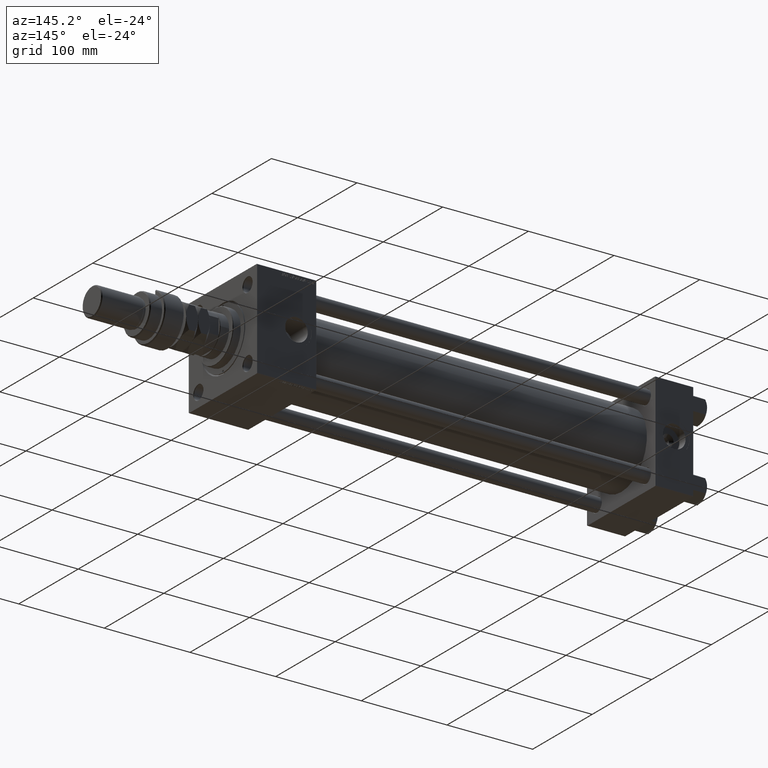
[diagram: clean part render]
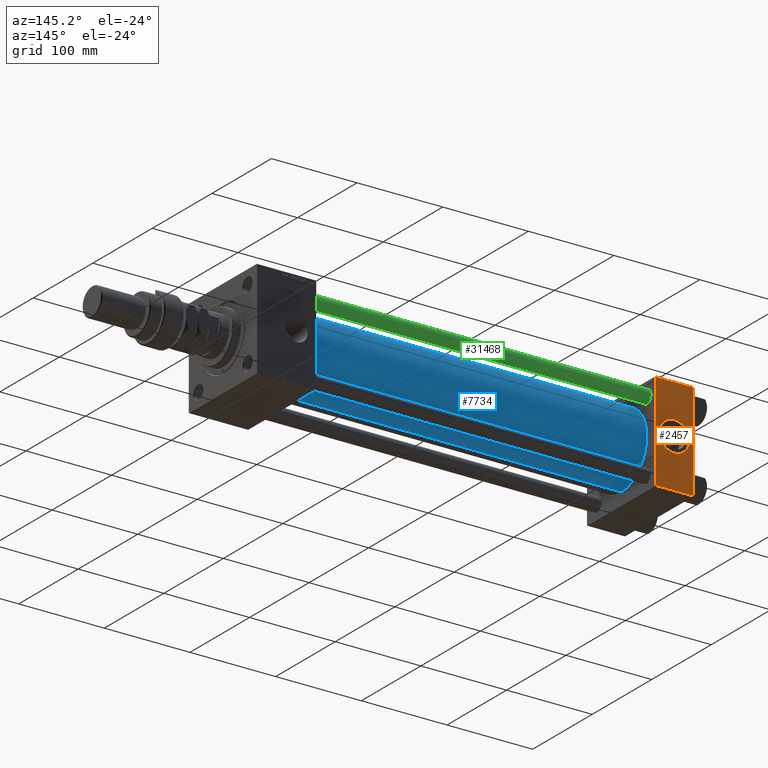
[diagram: same view with three faces highlighted in distinct colors, each labeled with its STEP entity id]
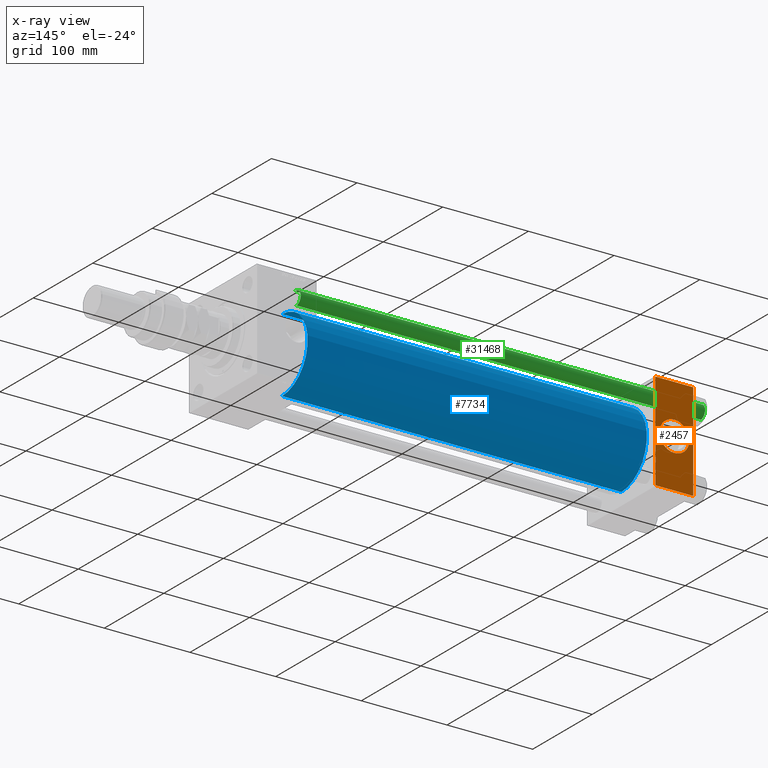
[diagram: x-ray of the same camera — body ghosted, the three highlighted faces saturated]
A machine part, auxiliary view with three faces highlighted in distinct colors.
The next image is the same camera in x-ray (body ghosted, the three faces saturated) — at least one of them is partly hidden behind the body in this view.
Their STEP definitions:

[orange] entity #2457 — the highlighted planar face has unit normal (0, 1, 0).
#1142 = CARTESIAN_POINT ( 'NONE',  ( 44.00000000000000000, 57.49999999999999289, 57.50000000000000711 ) ) ;
#2457 = ADVANCED_FACE ( 'NONE', ( #37712, #45610 ), #32308, .T. ) ;
#3209 = DIRECTION ( 'NONE',  ( 0.000000000000000000, 0.000000000000000000, 1.000000000000000000 ) ) ;
#4157 = VERTEX_POINT ( 'NONE', #17039 ) ;
#4813 = ORIENTED_EDGE ( 'NONE', *, *, #36567, .T. ) ;
#4930 = LINE ( 'NONE', #1142, #8312 ) ;
#6406 = DIRECTION ( 'NONE',  ( -1.000000000000000000, 0.000000000000000000, 0.000000000000000000 ) ) ;
#6723 = VERTEX_POINT ( 'NONE', #51117 ) ;
#8312 = VECTOR ( 'NONE', #25576, 1000.000000000000000 ) ;
#9636 = VERTEX_POINT ( 'NONE', #14611 ) ;
#10733 = EDGE_CURVE ( 'NONE', #40544, #6723, #37390, .T. ) ;
#11083 = AXIS2_PLACEMENT_3D ( 'NONE', #29291, #12196, #41524 ) ;
#11160 = DIRECTION ( 'NONE',  ( 1.000000000000000000, 0.000000000000000000, 0.000000000000000000 ) ) ;
#12196 = DIRECTION ( 'NONE',  ( -0.000000000000000000, 1.000000000000000000, 0.000000000000000000 ) ) ;
#14122 = EDGE_CURVE ( 'NONE', #31340, #9636, #19325, .T. ) ;
#14552 = VECTOR ( 'NONE', #27989, 1000.000000000000000 ) ;
#14611 = CARTESIAN_POINT ( 'NONE',  ( 44.00000000000000000, 57.49999999999999289, 57.00000000000003553 ) ) ;
#15746 = AXIS2_PLACEMENT_3D ( 'NONE', #40406, #40665, #3209 ) ;
#17039 = CARTESIAN_POINT ( 'NONE',  ( 44.00000000000000000, 57.49999999999999289, -57.00000000000000711 ) ) ;
#18921 = CARTESIAN_POINT ( 'NONE',  ( 22.00000000000000000, 57.49999999999999289, 17.50000000000000000 ) ) ;
#19325 = LINE ( 'NONE', #35072, #23575 ) ;
#19352 = DIRECTION ( 'NONE',  ( 0.000000000000000000, 0.000000000000000000, 1.000000000000000000 ) ) ;
#19375 = EDGE_LOOP ( 'NONE', ( #4813, #37827, #50018, #28567 ) ) ;
#20890 = AXIS2_PLACEMENT_3D ( 'NONE', #39453, #43798, #19352 ) ;
#22734 = EDGE_LOOP ( 'NONE', ( #39564, #29619 ) ) ;
#23575 = VECTOR ( 'NONE', #11160, 1000.000000000000000 ) ;
#24453 = LINE ( 'NONE', #52733, #14552 ) ;
#25576 = DIRECTION ( 'NONE',  ( 0.000000000000000000, 0.000000000000000000, -1.000000000000000000 ) ) ;
#27584 = LINE ( 'NONE', #36540, #43684 ) ;
#27989 = DIRECTION ( 'NONE',  ( 0.000000000000000000, 0.000000000000000000, -1.000000000000000000 ) ) ;
#28567 = ORIENTED_EDGE ( 'NONE', *, *, #14122, .T. ) ;
#29291 = CARTESIAN_POINT ( 'NONE',  ( 44.00000000000000000, 57.49999999999999289, 57.50000000000000711 ) ) ;
#29619 = ORIENTED_EDGE ( 'NONE', *, *, #41890, .F. ) ;
#31340 = VERTEX_POINT ( 'NONE', #39009 ) ;
#31489 = EDGE_CURVE ( 'NONE', #4157, #46077, #27584, .T. ) ;
#32308 = PLANE ( 'NONE',  #11083 ) ;
#35072 = CARTESIAN_POINT ( 'NONE',  ( 44.00000000000000000, 57.49999999999999289, 57.00000000000003553 ) ) ;
#36540 = CARTESIAN_POINT ( 'NONE',  ( 44.00000000000000000, 57.49999999999999289, -57.00000000000000711 ) ) ;
#36567 = EDGE_CURVE ( 'NONE', #9636, #4157, #4930, .T. ) ;
#37390 = CIRCLE ( 'NONE', #15746, 17.50000000000000000 ) ;
#37712 = FACE_BOUND ( 'NONE', #22734, .T. ) ;
#37827 = ORIENTED_EDGE ( 'NONE', *, *, #31489, .T. ) ;
#39009 = CARTESIAN_POINT ( 'NONE',  ( 0.000000000000000000, 57.49999999999999289, 57.00000000000003553 ) ) ;
#39453 = CARTESIAN_POINT ( 'NONE',  ( 22.00000000000000000, 57.49999999999999289, 0.000000000000000000 ) ) ;
#39564 = ORIENTED_EDGE ( 'NONE', *, *, #10733, .F. ) ;
#40383 = EDGE_CURVE ( 'NONE', #31340, #46077, #24453, .T. ) ;
#40406 = CARTESIAN_POINT ( 'NONE',  ( 22.00000000000000000, 57.49999999999999289, 0.000000000000000000 ) ) ;
#40544 = VERTEX_POINT ( 'NONE', #18921 ) ;
#40665 = DIRECTION ( 'NONE',  ( 0.000000000000000000, 1.000000000000000000, 0.000000000000000000 ) ) ;
#41524 = DIRECTION ( 'NONE',  ( 0.000000000000000000, -0.000000000000000000, 1.000000000000000000 ) ) ;
#41890 = EDGE_CURVE ( 'NONE', #6723, #40544, #44328, .T. ) ;
#41985 = CARTESIAN_POINT ( 'NONE',  ( 0.000000000000000000, 57.49999999999999289, -57.00000000000000711 ) ) ;
#43684 = VECTOR ( 'NONE', #6406, 1000.000000000000000 ) ;
#43798 = DIRECTION ( 'NONE',  ( 0.000000000000000000, 1.000000000000000000, 0.000000000000000000 ) ) ;
#44328 = CIRCLE ( 'NONE', #20890, 17.50000000000000000 ) ;
#45610 = FACE_OUTER_BOUND ( 'NONE', #19375, .T. ) ;
#46077 = VERTEX_POINT ( 'NONE', #41985 ) ;
#50018 = ORIENTED_EDGE ( 'NONE', *, *, #40383, .F. ) ;
#51117 = CARTESIAN_POINT ( 'NONE',  ( 22.00000000000000355, 57.49999999999999289, -17.50000000000000000 ) ) ;
#52733 = CARTESIAN_POINT ( 'NONE',  ( 0.000000000000000000, 57.49999999999999289, 57.50000000000000711 ) ) ;

[blue] entity #7734 — the highlighted cylindrical surface (partial cylindrical patch) has radius 43 mm, axis along (-1, -0, -0).
#1725 = CARTESIAN_POINT ( 'NONE',  ( 440.0000000000000000, -2.602085213965210642E-15, 43.00000000000000000 ) ) ;
#3567 = FACE_OUTER_BOUND ( 'NONE', #39893, .T. ) ;
#4080 = CARTESIAN_POINT ( 'NONE',  ( 43.99999999999998579, 2.663896022368408223E-15, -43.00000000000000000 ) ) ;
#5500 = ORIENTED_EDGE ( 'NONE', *, *, #10162, .T. ) ;
#7734 = ADVANCED_FACE ( 'NONE', ( #3567 ), #16070, .T. ) ;
#9547 = AXIS2_PLACEMENT_3D ( 'NONE', #32619, #52490, #16332 ) ;
#10162 = EDGE_CURVE ( 'NONE', #49940, #52619, #16162, .T. ) ;
#11882 = EDGE_CURVE ( 'NONE', #48338, #37040, #52249, .T. ) ;
#14489 = DIRECTION ( 'NONE',  ( -1.000000000000000000, -0.000000000000000000, -0.000000000000000000 ) ) ;
#16070 = CYLINDRICAL_SURFACE ( 'NONE', #9547, 43.00000000000000000 ) ;
#16162 = LINE ( 'NONE', #49565, #19184 ) ;
#16288 = EDGE_CURVE ( 'NONE', #49940, #48338, #50869, .T. ) ;
#16332 = DIRECTION ( 'NONE',  ( 0.000000000000000000, 0.000000000000000000, 1.000000000000000000 ) ) ;
#16704 = CARTESIAN_POINT ( 'NONE',  ( 440.0000000000000000, -2.602085213965210642E-15, 0.000000000000000000 ) ) ;
#19184 = VECTOR ( 'NONE', #49294, 1000.000000000000000 ) ;
#20870 = CARTESIAN_POINT ( 'NONE',  ( 440.0000000000000000, 2.663896022368408223E-15, -43.00000000000000000 ) ) ;
#21720 = ORIENTED_EDGE ( 'NONE', *, *, #16288, .F. ) ;
#21798 = ORIENTED_EDGE ( 'NONE', *, *, #11882, .F. ) ;
#25372 = CARTESIAN_POINT ( 'NONE',  ( 43.99999999999998579, -2.602085213965210642E-15, 0.000000000000000000 ) ) ;
#32619 = CARTESIAN_POINT ( 'NONE',  ( 440.0000000000000000, -2.602085213965210642E-15, 0.000000000000000000 ) ) ;
#33018 = VECTOR ( 'NONE', #14489, 1000.000000000000000 ) ;
#34306 = CARTESIAN_POINT ( 'NONE',  ( 43.99999999999998579, -2.602085213965210642E-15, 43.00000000000000000 ) ) ;
#35931 = AXIS2_PLACEMENT_3D ( 'NONE', #25372, #49060, #49314 ) ;
#37040 = VERTEX_POINT ( 'NONE', #34306 ) ;
#39294 = CARTESIAN_POINT ( 'NONE',  ( 440.0000000000000000, -2.602085213965210642E-15, 43.00000000000000000 ) ) ;
#39893 = EDGE_LOOP ( 'NONE', ( #21720, #5500, #43487, #21798 ) ) ;
#43487 = ORIENTED_EDGE ( 'NONE', *, *, #53505, .T. ) ;
#46018 = DIRECTION ( 'NONE',  ( 0.000000000000000000, 0.000000000000000000, -1.000000000000000000 ) ) ;
#46362 = CIRCLE ( 'NONE', #35931, 43.00000000000000000 ) ;
#48338 = VERTEX_POINT ( 'NONE', #39294 ) ;
#48592 = AXIS2_PLACEMENT_3D ( 'NONE', #16704, #49847, #46018 ) ;
#49060 = DIRECTION ( 'NONE',  ( 1.000000000000000000, -0.000000000000000000, 0.000000000000000000 ) ) ;
#49294 = DIRECTION ( 'NONE',  ( -1.000000000000000000, -0.000000000000000000, -0.000000000000000000 ) ) ;
#49314 = DIRECTION ( 'NONE',  ( 0.000000000000000000, 0.000000000000000000, 1.000000000000000000 ) ) ;
#49565 = CARTESIAN_POINT ( 'NONE',  ( 440.0000000000000000, 2.663896022368408223E-15, -43.00000000000000000 ) ) ;
#49847 = DIRECTION ( 'NONE',  ( 1.000000000000000000, 0.000000000000000000, 0.000000000000000000 ) ) ;
#49940 = VERTEX_POINT ( 'NONE', #20870 ) ;
#50869 = CIRCLE ( 'NONE', #48592, 43.00000000000000000 ) ;
#52249 = LINE ( 'NONE', #1725, #33018 ) ;
#52490 = DIRECTION ( 'NONE',  ( -1.000000000000000000, -0.000000000000000000, -0.000000000000000000 ) ) ;
#52619 = VERTEX_POINT ( 'NONE', #4080 ) ;
#53505 = EDGE_CURVE ( 'NONE', #52619, #37040, #46362, .T. ) ;

[green] entity #31468 — the highlighted cylindrical surface (edge-blend (fillet) strip) has radius 8 mm, axis along (-1, 0, 0).
#29 = AXIS2_PLACEMENT_3D ( 'NONE', #662, #47914, #31051 ) ;
#662 = CARTESIAN_POINT ( 'NONE',  ( 0.000000000000000000, 0.000000000000000000, 472.5000000000002274 ) ) ;
#1739 = LINE ( 'NONE', #13147, #42549 ) ;
#2347 = DIRECTION ( 'NONE',  ( -0.000000000000000000, -0.000000000000000000, -1.000000000000000000 ) ) ;
#3262 = CARTESIAN_POINT ( 'NONE',  ( -8.000000000000000000, 0.000000000000000000, 473.0000000000000000 ) ) ;
#4052 = LINE ( 'NONE', #3262, #39068 ) ;
#4364 = CIRCLE ( 'NONE', #29, 8.000000000000000000 ) ;
#5185 = ORIENTED_EDGE ( 'NONE', *, *, #21228, .T. ) ;
#6575 = VERTEX_POINT ( 'NONE', #40827 ) ;
#9375 = EDGE_CURVE ( 'NONE', #30489, #6575, #4052, .T. ) ;
#12491 = CARTESIAN_POINT ( 'NONE',  ( 8.000000000000000000, 9.797174393178823685E-16, 0.5000000000004445333 ) ) ;
#13147 = CARTESIAN_POINT ( 'NONE',  ( 8.000000000000000000, 9.797174393178823685E-16, 473.0000000000000000 ) ) ;
#15381 = FACE_OUTER_BOUND ( 'NONE', #34672, .T. ) ;
#15750 = DIRECTION ( 'NONE',  ( -0.000000000000000000, -0.000000000000000000, -1.000000000000000000 ) ) ;
#17793 = VERTEX_POINT ( 'NONE', #12491 ) ;
#18308 = DIRECTION ( 'NONE',  ( -0.000000000000000000, -0.000000000000000000, -1.000000000000000000 ) ) ;
#21228 = EDGE_CURVE ( 'NONE', #39470, #17793, #1739, .T. ) ;
#21276 = EDGE_CURVE ( 'NONE', #30489, #39470, #4364, .T. ) ;
#22087 = CIRCLE ( 'NONE', #27271, 8.000000000000000000 ) ;
#27271 = AXIS2_PLACEMENT_3D ( 'NONE', #27987, #44574, #28515 ) ;
#27987 = CARTESIAN_POINT ( 'NONE',  ( 0.000000000000000000, 0.000000000000000000, 0.5000000000004445333 ) ) ;
#28515 = DIRECTION ( 'NONE',  ( 1.000000000000000000, 0.000000000000000000, 0.000000000000000000 ) ) ;
#30489 = VERTEX_POINT ( 'NONE', #46947 ) ;
#31051 = DIRECTION ( 'NONE',  ( 1.000000000000000000, 0.000000000000000000, 0.000000000000000000 ) ) ;
#31468 = ADVANCED_FACE ( 'NONE', ( #15381 ), #48520, .T. ) ;
#33798 = EDGE_CURVE ( 'NONE', #17793, #6575, #22087, .T. ) ;
#34672 = EDGE_LOOP ( 'NONE', ( #35936, #5185, #53348, #45176 ) ) ;
#35936 = ORIENTED_EDGE ( 'NONE', *, *, #21276, .T. ) ;
#36726 = AXIS2_PLACEMENT_3D ( 'NONE', #40622, #2347, #47982 ) ;
#39068 = VECTOR ( 'NONE', #15750, 1000.000000000000000 ) ;
#39470 = VERTEX_POINT ( 'NONE', #50174 ) ;
#40622 = CARTESIAN_POINT ( 'NONE',  ( 0.000000000000000000, 0.000000000000000000, 473.0000000000000000 ) ) ;
#40827 = CARTESIAN_POINT ( 'NONE',  ( -8.000000000000000000, 0.000000000000000000, 0.5000000000004445333 ) ) ;
#42549 = VECTOR ( 'NONE', #18308, 1000.000000000000000 ) ;
#44574 = DIRECTION ( 'NONE',  ( -0.000000000000000000, -0.000000000000000000, 1.000000000000000000 ) ) ;
#45176 = ORIENTED_EDGE ( 'NONE', *, *, #9375, .F. ) ;
#46947 = CARTESIAN_POINT ( 'NONE',  ( -8.000000000000000000, 0.000000000000000000, 472.5000000000002274 ) ) ;
#47914 = DIRECTION ( 'NONE',  ( 0.000000000000000000, 0.000000000000000000, -1.000000000000000000 ) ) ;
#47982 = DIRECTION ( 'NONE',  ( -1.000000000000000000, 0.000000000000000000, 0.000000000000000000 ) ) ;
#48520 = CYLINDRICAL_SURFACE ( 'NONE', #36726, 8.000000000000000000 ) ;
#50174 = CARTESIAN_POINT ( 'NONE',  ( 8.000000000000000000, 9.797174393178823685E-16, 472.5000000000002274 ) ) ;
#53348 = ORIENTED_EDGE ( 'NONE', *, *, #33798, .T. ) ;